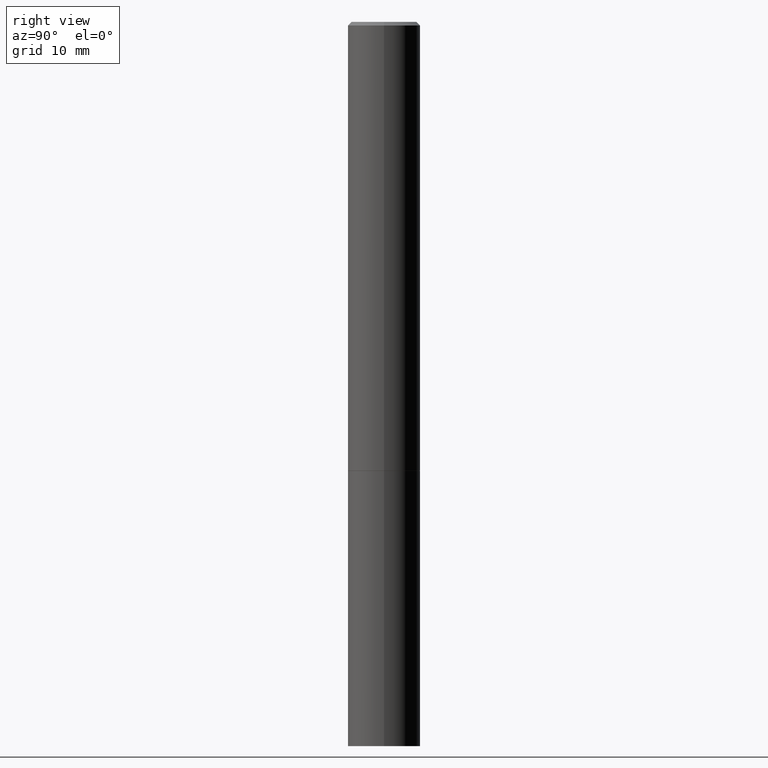
[diagram: clean part render]
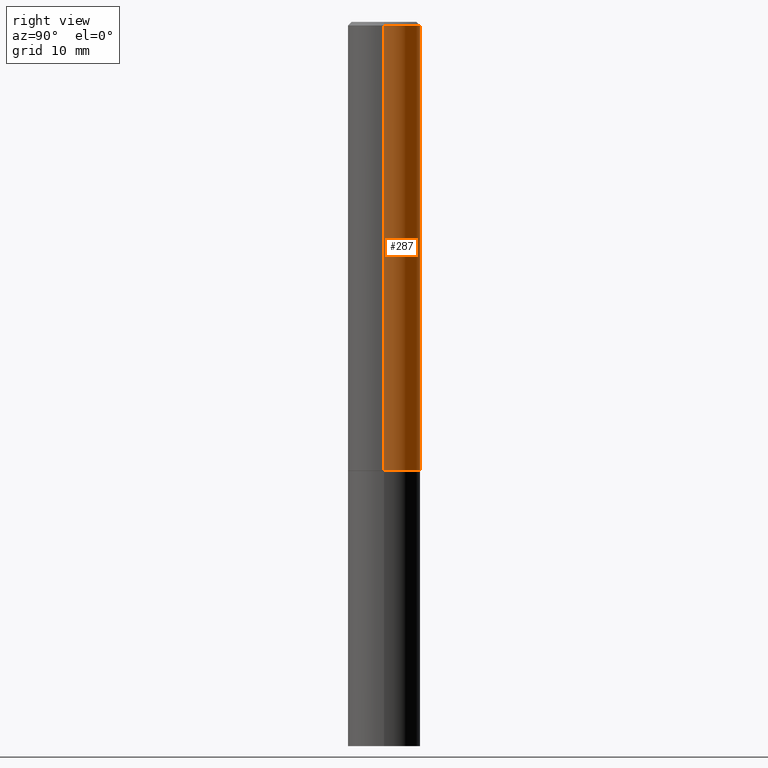
[diagram: same view with one face highlighted and labeled with its STEP entity id]
A machine part, right view. The second image highlights one B-rep face of the part: STEP entity #287.
In plain terms, the highlighted cylindrical surface (edge-blend (fillet) strip) has radius 5 mm, axis along (-0, 0, 1).
Its self-contained STEP definition (entity closure, byte-faithful):
#7 = CARTESIAN_POINT ( 'NONE',  ( -0.1968499999999996364, 1.304766576325675944E-15, -0.02000000000000002123 ) ) ;
#22 = DIRECTION ( 'NONE',  ( -2.445468806185136597E-29, 3.491481338843145583E-15, 1.000000000000000000 ) ) ;
#30 = ORIENTED_EDGE ( 'NONE', *, *, #66, .T. ) ;
#55 = CARTESIAN_POINT ( 'NONE',  ( 4.890937612370278413E-31, -6.982962677686297772E-17, -0.02000000000000002123 ) ) ;
#61 = EDGE_CURVE ( 'NONE', #249, #149, #279, .T. ) ;
#66 = EDGE_CURVE ( 'NONE', #345, #114, #331, .T. ) ;
#76 = DIRECTION ( 'NONE',  ( -2.445468806185136597E-29, 3.491481338843145583E-15, 1.000000000000000000 ) ) ;
#78 = CARTESIAN_POINT ( 'NONE',  ( -0.1968499999999998307, 1.398703375343756013E-15, -9.682923725166775270E-30 ) ) ;
#108 = CARTESIAN_POINT ( 'NONE',  ( 5.966699340211114556E-29, -8.518865318643389958E-15, -2.439899999999999736 ) ) ;
#114 = VERTEX_POINT ( 'NONE', #7 ) ;
#149 = VERTEX_POINT ( 'NONE', #179 ) ;
#155 = CIRCLE ( 'NONE', #186, 0.1968499999999996364 ) ;
#162 = CYLINDRICAL_SURFACE ( 'NONE', #188, 0.1968499999999998307 ) ;
#168 = AXIS2_PLACEMENT_3D ( 'NONE', #108, #76, #330 ) ;
#174 = EDGE_CURVE ( 'NONE', #249, #345, #328, .T. ) ;
#179 = CARTESIAN_POINT ( 'NONE',  ( 0.1968499999999996364, -1.420318657638186558E-15, -0.02000000000000002123 ) ) ;
#186 = AXIS2_PLACEMENT_3D ( 'NONE', #55, #357, #248 ) ;
#188 = AXIS2_PLACEMENT_3D ( 'NONE', #276, #22, #301 ) ;
#189 = CARTESIAN_POINT ( 'NONE',  ( 0.1968500000000000527, -9.893461521745931567E-15, -2.439899999999999736 ) ) ;
#207 = DIRECTION ( 'NONE',  ( -2.445468806185136877E-29, 3.491481338843145188E-15, 1.000000000000000000 ) ) ;
#209 = EDGE_CURVE ( 'NONE', #149, #114, #155, .T. ) ;
#219 = DIRECTION ( 'NONE',  ( -2.445468806185136877E-29, 3.491481338843145188E-15, 1.000000000000000000 ) ) ;
#224 = ORIENTED_EDGE ( 'NONE', *, *, #209, .F. ) ;
#228 = VECTOR ( 'NONE', #219, 39.37007874015748143 ) ;
#248 = DIRECTION ( 'NONE',  ( 1.000000000000000000, -6.982962677686266711E-15, 0.000000000000000000 ) ) ;
#249 = VERTEX_POINT ( 'NONE', #189 ) ;
#260 = ORIENTED_EDGE ( 'NONE', *, *, #61, .F. ) ;
#276 = CARTESIAN_POINT ( 'NONE',  ( 0.000000000000000000, 0.000000000000000000, 0.000000000000000000 ) ) ;
#279 = LINE ( 'NONE', #356, #228 ) ;
#286 = EDGE_LOOP ( 'NONE', ( #292, #30, #224, #260 ) ) ;
#287 = ADVANCED_FACE ( 'NONE', ( #333 ), #162, .T. ) ;
#292 = ORIENTED_EDGE ( 'NONE', *, *, #174, .T. ) ;
#301 = DIRECTION ( 'NONE',  ( 1.000000000000000000, -6.982962677686266711E-15, 4.876176775795935793E-29 ) ) ;
#313 = VECTOR ( 'NONE', #207, 39.37007874015748143 ) ;
#328 = CIRCLE ( 'NONE', #168, 0.1968500000000000527 ) ;
#330 = DIRECTION ( 'NONE',  ( 1.000000000000000000, -6.982962677686266711E-15, 0.000000000000000000 ) ) ;
#331 = LINE ( 'NONE', #78, #313 ) ;
#333 = FACE_OUTER_BOUND ( 'NONE', #286, .T. ) ;
#343 = CARTESIAN_POINT ( 'NONE',  ( -0.1968500000000000527, -2.895644097366364896E-15, -2.439899999999999736 ) ) ;
#345 = VERTEX_POINT ( 'NONE', #343 ) ;
#356 = CARTESIAN_POINT ( 'NONE',  ( 0.1968499999999998307, -1.374596203102540425E-15, 9.598753983154291049E-30 ) ) ;
#357 = DIRECTION ( 'NONE',  ( -2.445468806185136597E-29, 3.491481338843145583E-15, 1.000000000000000000 ) ) ;